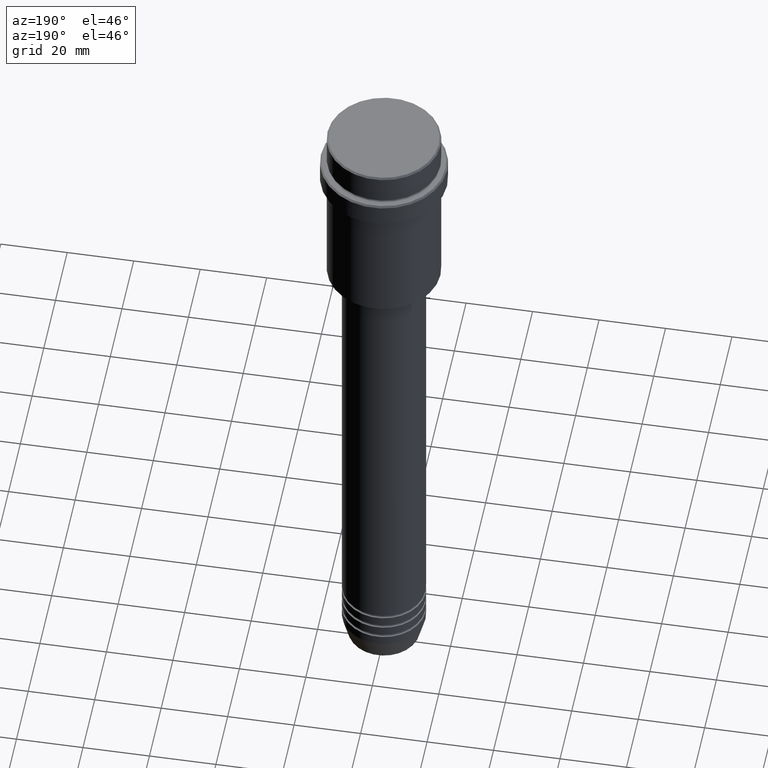
[diagram: clean part render]
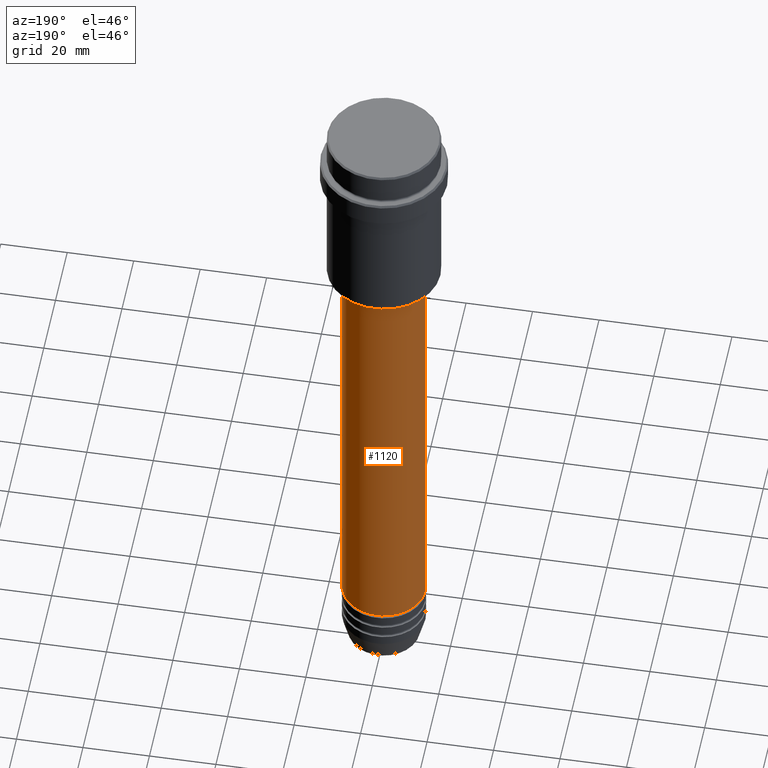
[diagram: same view with one face highlighted and labeled with its STEP entity id]
A machine part, auxiliary view. The second image highlights one B-rep face of the part: STEP entity #1120.
In plain terms, the highlighted cylindrical surface (partial cylindrical patch) has radius 12.5 mm, axis along (-0, -0, 1).
Its self-contained STEP definition (entity closure, byte-faithful):
#14 = DIRECTION ( 'NONE',  ( -0.000000000000000000, -0.000000000000000000, 1.000000000000000000 ) ) ;
#107 = EDGE_CURVE ( 'NONE', #1311, #1118, #1277, .T. ) ;
#135 = VERTEX_POINT ( 'NONE', #762 ) ;
#184 = AXIS2_PLACEMENT_3D ( 'NONE', #1122, #440, #781 ) ;
#185 = CARTESIAN_POINT ( 'NONE',  ( 0.000000000000000000, 0.000000000000000000, -56.99999999999999289 ) ) ;
#225 = FACE_OUTER_BOUND ( 'NONE', #713, .T. ) ;
#242 = ORIENTED_EDGE ( 'NONE', *, *, #791, .T. ) ;
#388 = VERTEX_POINT ( 'NONE', #881 ) ;
#440 = DIRECTION ( 'NONE',  ( -0.000000000000000000, -0.000000000000000000, 1.000000000000000000 ) ) ;
#488 = ORIENTED_EDGE ( 'NONE', *, *, #985, .F. ) ;
#510 = DIRECTION ( 'NONE',  ( -0.000000000000000000, -0.000000000000000000, 1.000000000000000000 ) ) ;
#577 = DIRECTION ( 'NONE',  ( -0.000000000000000000, -0.000000000000000000, 1.000000000000000000 ) ) ;
#614 = AXIS2_PLACEMENT_3D ( 'NONE', #185, #510, #838 ) ;
#635 = AXIS2_PLACEMENT_3D ( 'NONE', #769, #14, #651 ) ;
#651 = DIRECTION ( 'NONE',  ( 1.000000000000000000, 0.000000000000000000, 0.000000000000000000 ) ) ;
#713 = EDGE_LOOP ( 'NONE', ( #242, #1387, #488, #867 ) ) ;
#721 = CARTESIAN_POINT ( 'NONE',  ( -12.50000000000000000, 1.530808498934191521E-15, 0.000000000000000000 ) ) ;
#744 = CARTESIAN_POINT ( 'NONE',  ( -12.50000000000000000, 1.530808498934191521E-15, -56.99999999999999289 ) ) ;
#762 = CARTESIAN_POINT ( 'NONE',  ( 12.50000000000000000, 0.000000000000000000, -56.99999999999999289 ) ) ;
#769 = CARTESIAN_POINT ( 'NONE',  ( 0.000000000000000000, 0.000000000000000000, 0.000000000000000000 ) ) ;
#772 = VECTOR ( 'NONE', #1165, 1000.000000000000000 ) ;
#781 = DIRECTION ( 'NONE',  ( 1.000000000000000000, 0.000000000000000000, 0.000000000000000000 ) ) ;
#791 = EDGE_CURVE ( 'NONE', #388, #1311, #1351, .T. ) ;
#828 = CARTESIAN_POINT ( 'NONE',  ( -12.50000000000000000, 1.530808498934191521E-15, -190.9999999999999147 ) ) ;
#838 = DIRECTION ( 'NONE',  ( 1.000000000000000000, 0.000000000000000000, 0.000000000000000000 ) ) ;
#867 = ORIENTED_EDGE ( 'NONE', *, *, #1403, .F. ) ;
#881 = CARTESIAN_POINT ( 'NONE',  ( 12.50000000000000000, 0.000000000000000000, -190.9999999999999147 ) ) ;
#887 = LINE ( 'NONE', #1324, #1331 ) ;
#985 = EDGE_CURVE ( 'NONE', #135, #1118, #1259, .T. ) ;
#1089 = CYLINDRICAL_SURFACE ( 'NONE', #635, 12.50000000000000000 ) ;
#1118 = VERTEX_POINT ( 'NONE', #744 ) ;
#1120 = ADVANCED_FACE ( 'NONE', ( #225 ), #1089, .T. ) ;
#1122 = CARTESIAN_POINT ( 'NONE',  ( 0.000000000000000000, 0.000000000000000000, -190.9999999999999147 ) ) ;
#1165 = DIRECTION ( 'NONE',  ( -0.000000000000000000, -0.000000000000000000, 1.000000000000000000 ) ) ;
#1259 = CIRCLE ( 'NONE', #614, 12.50000000000000000 ) ;
#1277 = LINE ( 'NONE', #721, #772 ) ;
#1311 = VERTEX_POINT ( 'NONE', #828 ) ;
#1324 = CARTESIAN_POINT ( 'NONE',  ( 12.50000000000000000, 0.000000000000000000, 0.000000000000000000 ) ) ;
#1331 = VECTOR ( 'NONE', #577, 1000.000000000000000 ) ;
#1351 = CIRCLE ( 'NONE', #184, 12.50000000000000000 ) ;
#1387 = ORIENTED_EDGE ( 'NONE', *, *, #107, .T. ) ;
#1403 = EDGE_CURVE ( 'NONE', #388, #135, #887, .T. ) ;